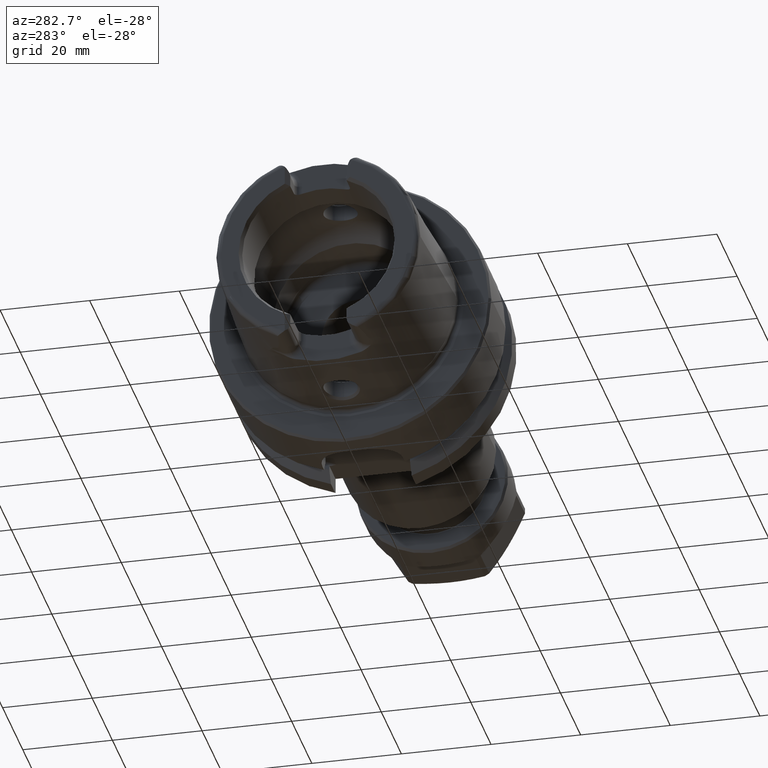
[diagram: clean part render]
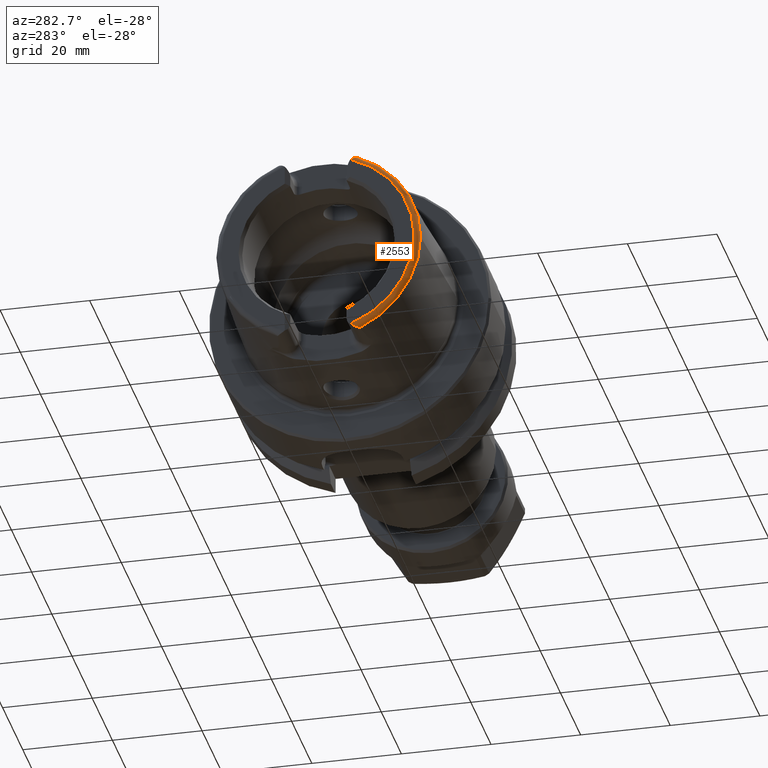
[diagram: same view with one face highlighted and labeled with its STEP entity id]
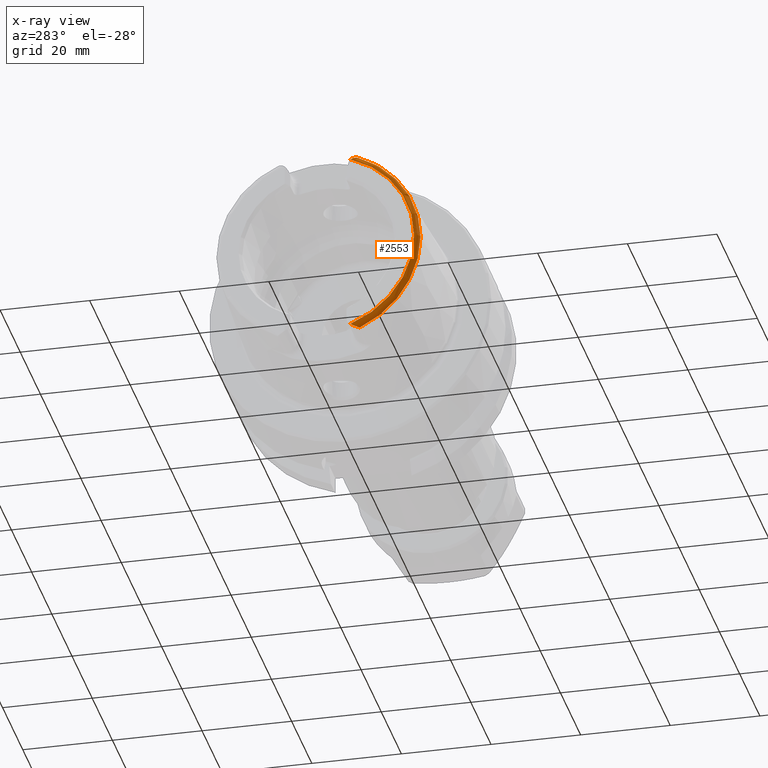
[diagram: x-ray of the same camera — body ghosted, the highlighted face saturated]
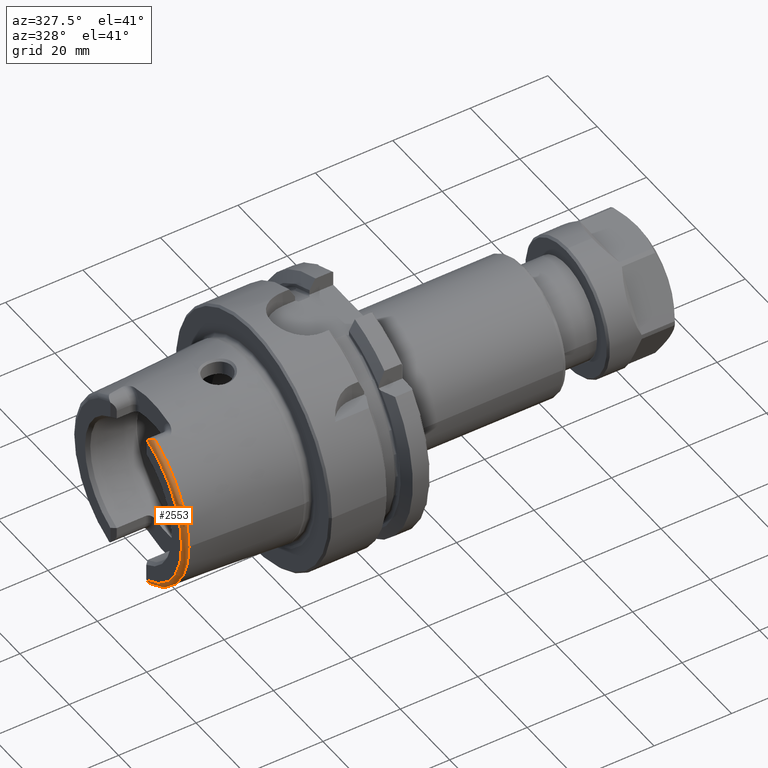
[diagram: same view with one face highlighted and labeled with its STEP entity id]
A machine part, auxiliary view. The second image highlights one B-rep face of the part: STEP entity #2553.
The next image is the same camera in x-ray: the body ghosted, the highlighted face saturated — about 0% of this face is hidden behind the body in this view.
A second angle (auxiliary view) of the same face is appended — the face is thin or edge-on in the first view.
In plain terms, the highlighted toroidal blend (fillet) surface has major radius 21.576 mm and minor (blend) radius 1.2 mm.
Its self-contained STEP definition (entity closure, byte-faithful):
#58=B_SPLINE_CURVE_WITH_KNOTS('',3,(#3911,#3912,#3913,#3914,#3915,#3916,
#3917,#3918,#3919,#3920,#3921,#3922),.UNSPECIFIED.,.F.,.F.,(4,2,2,2,2,4),
(-0.196612183526961,-0.162100751777108,-0.0988537843219417,-0.0492481970353068,
-0.0201985054494333,0.),.UNSPECIFIED.);
#61=B_SPLINE_CURVE_WITH_KNOTS('',3,(#4002,#4003,#4004,#4005,#4006,#4007,
#4008,#4009,#4010,#4011,#4012,#4013),.UNSPECIFIED.,.F.,.F.,(4,2,2,2,2,4),
(-0.440016298339346,-0.413819168091726,-0.38684223146412,-0.314176502280688,
-0.242048966230796,-0.191409762337977),.UNSPECIFIED.);
#149=TOROIDAL_SURFACE('',#2889,21.5760400159857,1.2);
#377=FACE_OUTER_BOUND('',#533,.T.);
#533=EDGE_LOOP('',(#2221,#2222,#2223,#2224,#2225));
#901=CIRCLE('',#2748,22.7745368271334);
#905=CIRCLE('',#2752,22.7745368271334);
#969=CIRCLE('',#2886,21.5760400159857);
#1060=VERTEX_POINT('',#3891);
#1061=VERTEX_POINT('',#3910);
#1080=VERTEX_POINT('',#3999);
#1081=VERTEX_POINT('',#4001);
#1096=VERTEX_POINT('',#4202);
#1325=EDGE_CURVE('',#1061,#1060,#58,.T.);
#1350=EDGE_CURVE('',#1081,#1080,#61,.T.);
#1370=EDGE_CURVE('',#1096,#1060,#901,.T.);
#1382=EDGE_CURVE('',#1081,#1096,#905,.T.);
#1558=EDGE_CURVE('',#1080,#1061,#969,.T.);
#2221=ORIENTED_EDGE('',*,*,#1350,.T.);
#2222=ORIENTED_EDGE('',*,*,#1558,.T.);
#2223=ORIENTED_EDGE('',*,*,#1325,.T.);
#2224=ORIENTED_EDGE('',*,*,#1370,.F.);
#2225=ORIENTED_EDGE('',*,*,#1382,.F.);
#2553=ADVANCED_FACE('',(#377),#149,.T.);
#2748=AXIS2_PLACEMENT_3D('',#4204,#3190,#3191);
#2752=AXIS2_PLACEMENT_3D('',#4308,#3198,#3199);
#2886=AXIS2_PLACEMENT_3D('',#5182,#3525,#3526);
#2889=AXIS2_PLACEMENT_3D('',#5185,#3531,#3532);
#3190=DIRECTION('center_axis',(1.,0.,0.));
#3191=DIRECTION('ref_axis',(0.,0.,-1.));
#3198=DIRECTION('center_axis',(1.,0.,0.));
#3199=DIRECTION('ref_axis',(0.,0.,-1.));
#3525=DIRECTION('center_axis',(1.,0.,0.));
#3526=DIRECTION('ref_axis',(0.,0.,-1.));
#3531=DIRECTION('center_axis',(1.,0.,0.));
#3532=DIRECTION('ref_axis',(0.,0.,-1.));
#3891=CARTESIAN_POINT('',(-30.8600449304182,-9.1175788960984,-20.8698175067219));
#3910=CARTESIAN_POINT('',(-32.,-7.39118810947246,-20.2705658801576));
#3911=CARTESIAN_POINT('Ctrl Pts',(-32.,-7.39118810947247,-20.2705658801576));
#3912=CARTESIAN_POINT('Ctrl Pts',(-32.,-7.51057646079925,-20.3626402436877));
#3913=CARTESIAN_POINT('Ctrl Pts',(-31.9798323447024,-7.63713759811651,-20.4450895592776));
#3914=CARTESIAN_POINT('Ctrl Pts',(-31.8795915966629,-8.00411514663101,-20.6460540241957));
#3915=CARTESIAN_POINT('Ctrl Pts',(-31.7662291944519,-8.24534617868917,-20.7330636375648));
#3916=CARTESIAN_POINT('Ctrl Pts',(-31.5260503396065,-8.62641311167603,-20.8272571305318));
#3917=CARTESIAN_POINT('Ctrl Pts',(-31.4080214744472,-8.77500391332017,-20.8477181028241));
#3918=CARTESIAN_POINT('Ctrl Pts',(-31.2168511506693,-8.95347341138424,-20.8640491182849));
#3919=CARTESIAN_POINT('Ctrl Pts',(-31.1371144343332,-9.01480627610083,-20.8671499279665));
#3920=CARTESIAN_POINT('Ctrl Pts',(-30.9904836833853,-9.08806135889972,-20.8694907892639));
#3921=CARTESIAN_POINT('Ctrl Pts',(-30.9268776870879,-9.10942530024495,-20.8697257132045));
#3922=CARTESIAN_POINT('Ctrl Pts',(-30.8600449304182,-9.11757889609838,-20.8698175067219));
#3999=CARTESIAN_POINT('',(-32.,-7.39118810947246,20.2705658801576));
#4001=CARTESIAN_POINT('',(-30.8600449304182,-9.1175788960984,20.8698175067219));
#4002=CARTESIAN_POINT('Ctrl Pts',(-30.8600449304182,-9.11757889609839,20.8698175067219));
#4003=CARTESIAN_POINT('Ctrl Pts',(-30.9283853966267,-9.1092413596916,20.8697236423942));
#4004=CARTESIAN_POINT('Ctrl Pts',(-30.9933437959442,-9.08709005778456,20.8694809526083));
#4005=CARTESIAN_POINT('Ctrl Pts',(-31.1177754091763,-9.02396510410894,20.8674193162914));
#4006=CARTESIAN_POINT('Ctrl Pts',(-31.1770034834694,-8.98246838908717,20.8654817144325));
#4007=CARTESIAN_POINT('Ctrl Pts',(-31.3775872414353,-8.81520504288704,20.8530880014962));
#4008=CARTESIAN_POINT('Ctrl Pts',(-31.521057678942,-8.63827412284131,20.8318261586711));
#4009=CARTESIAN_POINT('Ctrl Pts',(-31.7694065050575,-8.23592790359805,20.7289177452773));
#4010=CARTESIAN_POINT('Ctrl Pts',(-31.8689043999789,-8.02084936775806,20.6497346714256));
#4011=CARTESIAN_POINT('Ctrl Pts',(-31.9746332690681,-7.66799906728034,20.4648878758955));
#4012=CARTESIAN_POINT('Ctrl Pts',(-32.,-7.52524774054413,20.3739549886328));
#4013=CARTESIAN_POINT('Ctrl Pts',(-32.,-7.39118810947247,20.2705658801576));
#4202=CARTESIAN_POINT('',(-30.8600449304182,-22.7745368271334,-2.78907636274124E-15));
#4204=CARTESIAN_POINT('Origin',(-30.8600449304182,0.,0.));
#4308=CARTESIAN_POINT('Origin',(-30.8600449304182,0.,0.));
#5182=CARTESIAN_POINT('Origin',(-32.,0.,0.));
#5185=CARTESIAN_POINT('Origin',(-30.8,0.,0.));